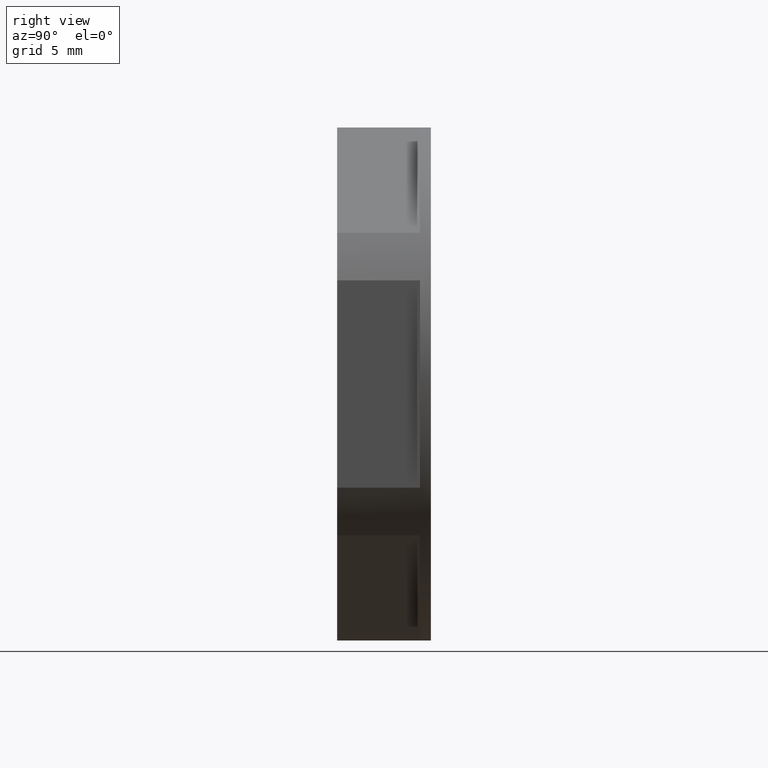
[diagram: clean part render]
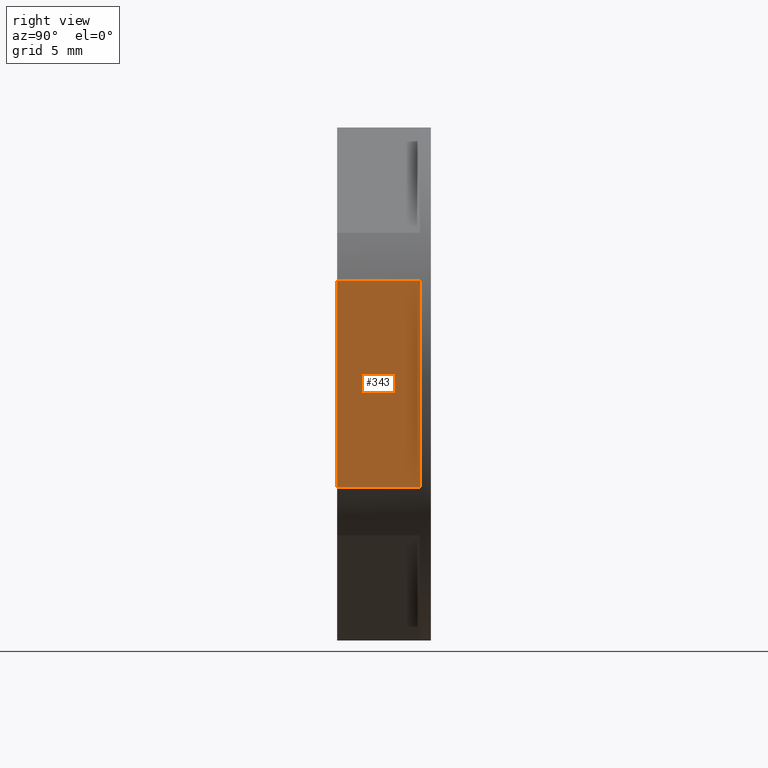
[diagram: same view with one face highlighted and labeled with its STEP entity id]
A machine part, right view. The second image highlights one B-rep face of the part: STEP entity #343.
In plain terms, the highlighted planar face has unit normal (-1, 0, 0).
Its self-contained STEP definition (entity closure, byte-faithful):
#60 = CARTESIAN_POINT ( 'NONE',  ( 15.00000000000000000, -62.22203320896631600, -6.742217736027219700 ) ) ;
#68 = DIRECTION ( 'NONE',  ( -1.000000000000000000, 0.0000000000000000000, 0.0000000000000000000 ) ) ;
#79 = FACE_OUTER_BOUND ( 'NONE', #897, .T. ) ;
#81 = DIRECTION ( 'NONE',  ( 0.0000000000000000000, 0.0000000000000000000, 1.000000000000000000 ) ) ;
#89 = PLANE ( 'NONE',  #2155 ) ;
#135 = LINE ( 'NONE', #151, #2146 ) ;
#148 = CARTESIAN_POINT ( 'NONE',  ( 15.00000000000000000, -18.83904097094790200, -6.630233781700320100 ) ) ;
#151 = CARTESIAN_POINT ( 'NONE',  ( 15.00000000000000000, -0.6864403799322559300, -6.630233781700320100 ) ) ;
#169 = DIRECTION ( 'NONE',  ( -0.0000000000000000000, -1.000000000000000000, -0.0000000000000000000 ) ) ;
#181 = CARTESIAN_POINT ( 'NONE',  ( 15.00000000000000000, -13.53903905495021900, 6.630233781700318300 ) ) ;
#182 = CARTESIAN_POINT ( 'NONE',  ( 15.00000000000000000, -18.83904097094790200, 6.630233781700318300 ) ) ;
#202 = CARTESIAN_POINT ( 'NONE',  ( 15.00000000000000000, -13.53903905495021900, -6.630233781700320100 ) ) ;
#277 = EDGE_CURVE ( 'NONE', #955, #956, #622, .T. ) ;
#303 = EDGE_CURVE ( 'NONE', #964, #939, #767, .T. ) ;
#308 = EDGE_CURVE ( 'NONE', #964, #955, #798, .T. ) ;
#343 = ADVANCED_FACE ( 'NONE', ( #79 ), #89, .F. ) ;
#371 = EDGE_CURVE ( 'NONE', #956, #939, #135, .T. ) ;
#611 = CARTESIAN_POINT ( 'NONE',  ( 15.00000000000000000, -13.53903969361609900, -6.742217736027219700 ) ) ;
#612 = DIRECTION ( 'NONE',  ( -0.0000000000000000000, -0.0000000000000000000, -1.000000000000000000 ) ) ;
#622 = LINE ( 'NONE', #611, #2091 ) ;
#757 = DIRECTION ( 'NONE',  ( 0.0000000000000000000, 0.0000000000000000000, -1.000000000000000000 ) ) ;
#767 = LINE ( 'NONE', #777, #2071 ) ;
#777 = CARTESIAN_POINT ( 'NONE',  ( 15.00000000000000000, -18.83904097094790600, -6.742217736027219700 ) ) ;
#798 = LINE ( 'NONE', #821, #2087 ) ;
#815 = DIRECTION ( 'NONE',  ( 0.0000000000000000000, 1.000000000000000000, 0.0000000000000000000 ) ) ;
#821 = CARTESIAN_POINT ( 'NONE',  ( 15.00000000000000000, -0.6864403799322559300, 6.630233781700318300 ) ) ;
#897 = EDGE_LOOP ( 'NONE', ( #1013, #994, #992, #1042 ) ) ;
#939 = VERTEX_POINT ( 'NONE', #148 ) ;
#955 = VERTEX_POINT ( 'NONE', #181 ) ;
#956 = VERTEX_POINT ( 'NONE', #202 ) ;
#964 = VERTEX_POINT ( 'NONE', #182 ) ;
#992 = ORIENTED_EDGE ( 'NONE', *, *, #303, .T. ) ;
#994 = ORIENTED_EDGE ( 'NONE', *, *, #308, .F. ) ;
#1013 = ORIENTED_EDGE ( 'NONE', *, *, #277, .F. ) ;
#1042 = ORIENTED_EDGE ( 'NONE', *, *, #371, .F. ) ;
#2071 = VECTOR ( 'NONE', #757, 1000.000000000000000 ) ;
#2087 = VECTOR ( 'NONE', #815, 1000.000000000000000 ) ;
#2091 = VECTOR ( 'NONE', #612, 1000.000000000000000 ) ;
#2146 = VECTOR ( 'NONE', #169, 1000.000000000000000 ) ;
#2155 = AXIS2_PLACEMENT_3D ( 'NONE', #60, #68, #81 ) ;